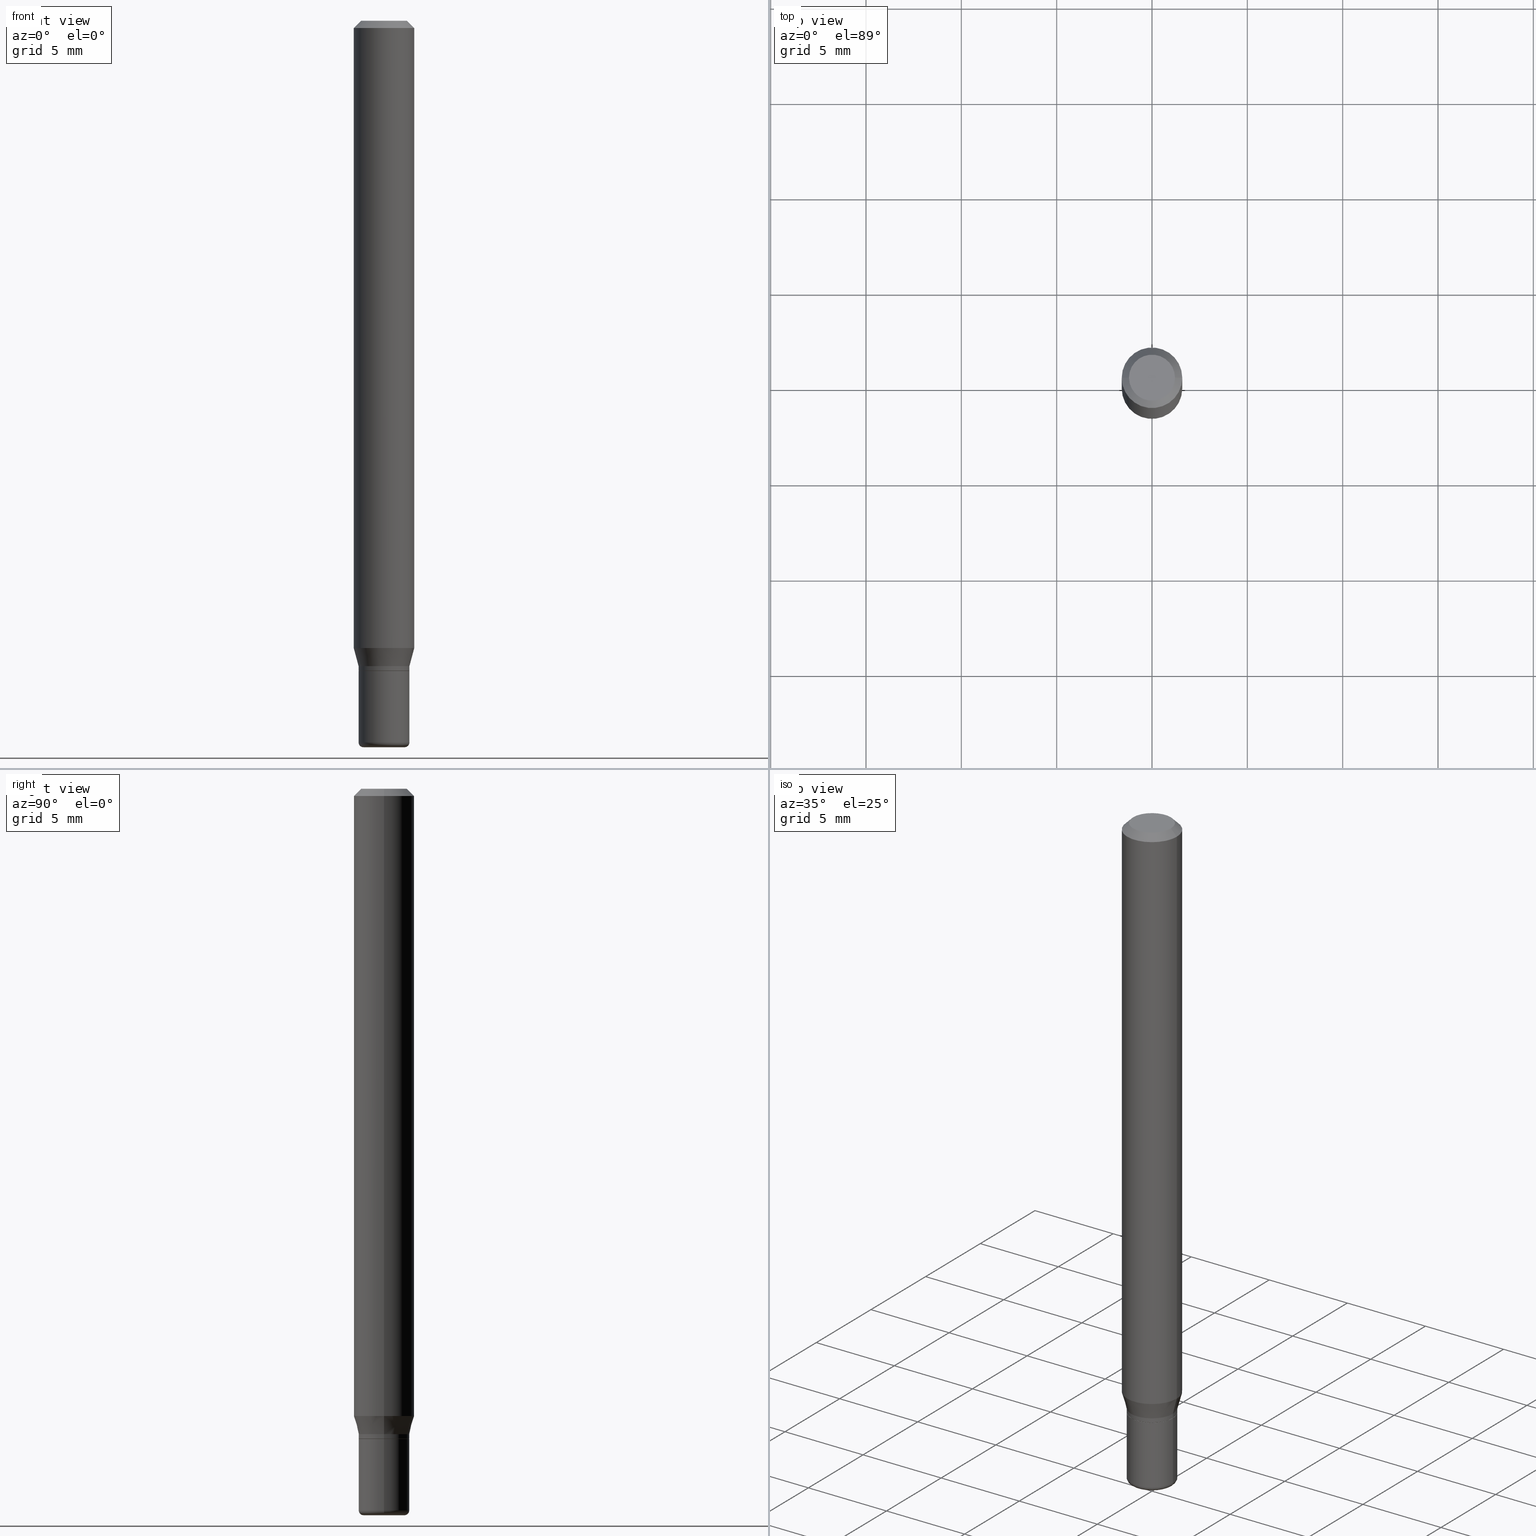
[diagram: canonical four-view strip — front | top / right | iso, engineering-drawing reading convention]
A machine part, canonical four-view strip (front | top / right | iso — engineering-drawing reading convention). The complete STEP part file that produces these views, byte-faithful:
ISO-10303-21;
HEADER;
FILE_DESCRIPTION (( 'STEP AP203' ),
    '1' );
FILE_NAME ('08603.STEP',
    '2024-02-29T19:57:09',
    ( '' ),
    ( '' ),
    'SwSTEP 2.0',
    'SolidWorks 2023',
    '' );
FILE_SCHEMA (( 'CONFIG_CONTROL_DESIGN' ));
ENDSEC;

DATA;
#1 = ORIENTED_EDGE ( 'NONE', *, *, #471, .T. ) ;
#2 = EDGE_CURVE ( 'NONE', #270, #190, #180, .T. ) ;
#3 = CONICAL_SURFACE ( 'NONE', #121, 0.05249999999999998418, 0.2617993877991485197 ) ;
#4 = LOCAL_TIME ( 14, 57, 9.000000000000000000, #480 ) ;
#5 = DIRECTION ( 'NONE',  ( -2.445468806185136597E-29, 3.491481338843145583E-15, 1.000000000000000000 ) ) ;
#6 = EDGE_CURVE ( 'NONE', #310, #7, #209, .T. ) ;
#7 = VERTEX_POINT ( 'NONE', #11 ) ;
#8 = FACE_OUTER_BOUND ( 'NONE', #487, .T. ) ;
#9 = ORIENTED_EDGE ( 'NONE', *, *, #163, .F. ) ;
#10 = CIRCLE ( 'NONE', #272, 0.06250000000000000000 ) ;
#11 = CARTESIAN_POINT ( 'NONE',  ( -0.06250000000000000000, -4.078005816656016392E-15, -1.295179491924311144 ) ) ;
#12 = CARTESIAN_POINT ( 'NONE',  ( 0.04249999999999998918, -5.533997922066385616E-15, -1.500000000000000222 ) ) ;
#13 = EDGE_CURVE ( 'NONE', #7, #190, #299, .T. ) ;
#14 = CARTESIAN_POINT ( 'NONE',  ( 3.666055405785617499E-16, 0.05249999999999530736, -1.342500000000000471 ) ) ;
#15 = CARTESIAN_POINT ( 'NONE',  ( 3.668203209277632395E-31, -5.237222008264614861E-17, -0.01499999999999970281 ) ) ;
#16 = LINE ( 'NONE', #211, #222 ) ;
#17 = FACE_OUTER_BOUND ( 'NONE', #475, .T. ) ;
#18 = DIRECTION ( 'NONE',  ( -1.000000000000000000, 6.982962677686266711E-15, 0.000000000000000000 ) ) ;
#19 = CARTESIAN_POINT ( 'NONE',  ( 0.06250000000000000000, -4.888073874380378612E-16, -0.01499999999999970281 ) ) ;
#20 = DIRECTION ( 'NONE',  ( -0.7071067811864267805, 7.493145998869918709E-15, 0.7071067811866682540 ) ) ;
#21 = CIRCLE ( 'NONE', #316, 0.06250000000000000000 ) ;
#22 = AXIS2_PLACEMENT_3D ( 'NONE', #103, #227, #505 ) ;
#23 = LINE ( 'NONE', #502, #205 ) ;
#24 = DIRECTION ( 'NONE',  ( -2.445468806185136597E-29, 3.491481338843145583E-15, 1.000000000000000000 ) ) ;
#25 = CC_DESIGN_DATE_AND_TIME_ASSIGNMENT ( #100, #383, ( #224 ) ) ;
#26 = ORIENTED_EDGE ( 'NONE', *, *, #476, .F. ) ;
#27 = DIRECTION ( 'NONE',  ( -2.445468806185136597E-29, 3.491481338843145583E-15, 1.000000000000000000 ) ) ;
#28 = CIRCLE ( 'NONE', #322, 0.05249999999999999806 ) ;
#29 = AXIS2_PLACEMENT_3D ( 'NONE', #465, #182, #335 ) ;
#30 = ORIENTED_EDGE ( 'NONE', *, *, #118, .T. ) ;
#31 = DATE_AND_TIME ( #75, #138 ) ;
#32 = COORDINATED_UNIVERSAL_TIME_OFFSET ( 5, 0, .BEHIND. ) ;
#33 = DIRECTION ( 'NONE',  ( 1.000000000000000000, -6.982962677686261977E-15, 0.000000000000000000 ) ) ;
#34 = AXIS2_PLACEMENT_3D ( 'NONE', #135, #453, #257 ) ;
#35 = VERTEX_POINT ( 'NONE', #295 ) ;
#36 = DIRECTION ( 'NONE',  ( -2.445468806185136597E-29, 3.491481338843145583E-15, 1.000000000000000000 ) ) ;
#37 = CYLINDRICAL_SURFACE ( 'NONE', #240, 0.05249999999999997030 ) ;
#38 = PRODUCT ( '08603', '08603', '', ( #355 ) ) ;
#39 = ADVANCED_FACE ( 'NONE', ( #85 ), #90, .T. ) ;
#40 = CIRCLE ( 'NONE', #150, 0.04249999999999998918 ) ;
#41 = ORIENTED_EDGE ( 'NONE', *, *, #305, .F. ) ;
#42 = EDGE_LOOP ( 'NONE', ( #409, #65, #348, #443 ) ) ;
#43 = LINE ( 'NONE', #207, #114 ) ;
#44 = DIRECTION ( 'NONE',  ( 1.000000000000000000, -6.982962677686271444E-15, 0.000000000000000000 ) ) ;
#45 = EDGE_CURVE ( 'NONE', #310, #149, #184, .T. ) ;
#46 = ORIENTED_EDGE ( 'NONE', *, *, #280, .F. ) ;
#47 = FACE_OUTER_BOUND ( 'NONE', #116, .T. ) ;
#48 = DIRECTION ( 'NONE',  ( 1.000000000000000000, -6.982962677686276966E-15, 0.000000000000000000 ) ) ;
#49 = APPROVAL_PERSON_ORGANIZATION ( #238, #241, #269 ) ;
#50 = ADVANCED_FACE ( 'NONE', ( #266 ), #57, .F. ) ;
#51 = FACE_OUTER_BOUND ( 'NONE', #195, .T. ) ;
#52 = CARTESIAN_POINT ( 'NONE',  ( 0.04750000000000000749, -4.035134999187568762E-16, 2.731847993664288856E-16 ) ) ;
#53 = DIRECTION ( 'NONE',  ( 1.000000000000000000, -6.982962677686266711E-15, 4.876176775795935793E-29 ) ) ;
#54 = CARTESIAN_POINT ( 'NONE',  ( 0.000000000000000000, 0.000000000000000000, 0.000000000000000000 ) ) ;
#55 = CARTESIAN_POINT ( 'NONE',  ( -0.06250000000000000000, -1.843144413444299442E-15, -0.01499999999999970281 ) ) ;
#56 = EDGE_LOOP ( 'NONE', ( #233, #314, #504, #125 ) ) ;
#57 = PLANE ( 'NONE',  #204 ) ;
#58 = ADVANCED_FACE ( 'NONE', ( #210 ), #101, .T. ) ;
#59 = AXIS2_PLACEMENT_3D ( 'NONE', #410, #302, #463 ) ;
#60 = EDGE_CURVE ( 'NONE', #72, #190, #10, .T. ) ;
#61 = VECTOR ( 'NONE', #87, 39.37007874015748143 ) ;
#62 = ORIENTED_EDGE ( 'NONE', *, *, #163, .T. ) ;
#63 = FACE_OUTER_BOUND ( 'NONE', #173, .T. ) ;
#64 = DIRECTION ( 'NONE',  ( 1.000000000000000000, -6.982962677686269077E-15, 0.000000000000000000 ) ) ;
#65 = ORIENTED_EDGE ( 'NONE', *, *, #6, .T. ) ;
#66 = ORIENTED_EDGE ( 'NONE', *, *, #411, .F. ) ;
#67 = APPLICATION_PROTOCOL_DEFINITION ( 'international standard', 'config_control_design', 1994, #232 ) ;
#68 = CARTESIAN_POINT ( 'NONE',  ( 0.06250000000000000000, -4.811533449433669144E-16, -0.01499999999999970281 ) ) ;
#69 = APPLICATION_PROTOCOL_DEFINITION ( 'international standard', 'config_control_design', 1994, #334 ) ;
#70 = AXIS2_PLACEMENT_3D ( 'NONE', #88, #98, #333 ) ;
#71 = APPROVAL ( #200, 'UNSPECIFIED' ) ;
#72 = VERTEX_POINT ( 'NONE', #19 ) ;
#73 = PERSON_AND_ORGANIZATION_ROLE ( 'design_owner' ) ;
#74 = DIRECTION ( 'NONE',  ( 2.438088387897960049E-29, -3.491481338843145188E-15, -1.000000000000000000 ) ) ;
#75 = CALENDAR_DATE ( 2024, 29, 2 ) ;
#76 = EDGE_CURVE ( 'NONE', #7, #251, #21, .T. ) ;
#77 =( GEOMETRIC_REPRESENTATION_CONTEXT ( 3 ) GLOBAL_UNCERTAINTY_ASSIGNED_CONTEXT ( ( #482 ) ) GLOBAL_UNIT_ASSIGNED_CONTEXT ( ( #406, #485, #444 ) ) REPRESENTATION_CONTEXT ( 'NONE', 'WORKASPACE' ) );
#78 = LOCAL_TIME ( 14, 57, 9.000000000000000000, #372 ) ;
#79 = ORIENTED_EDGE ( 'NONE', *, *, #381, .T. ) ;
#80 = EDGE_CURVE ( 'NONE', #437, #35, #359, .T. ) ;
#81 = ORIENTED_EDGE ( 'NONE', *, *, #13, .T. ) ;
#82 = CIRCLE ( 'NONE', #384, 0.05249999999999999806 ) ;
#83 = DIRECTION ( 'NONE',  ( -2.445468806185136597E-29, 3.491481338843145583E-15, 1.000000000000000000 ) ) ;
#84 = ORIENTED_EDGE ( 'NONE', *, *, #398, .T. ) ;
#85 = FACE_OUTER_BOUND ( 'NONE', #56, .T. ) ;
#86 = EDGE_LOOP ( 'NONE', ( #405, #147, #123, #287 ) ) ;
#87 = DIRECTION ( 'NONE',  ( -2.445468806185136877E-29, 3.491481338843145188E-15, 1.000000000000000000 ) ) ;
#88 = CARTESIAN_POINT ( 'NONE',  ( 3.258587184241694874E-29, -4.652398884008491604E-15, -1.332500000000000018 ) ) ;
#89 = CYLINDRICAL_SURFACE ( 'NONE', #148, 0.05249999999999997030 ) ;
#90 = CYLINDRICAL_SURFACE ( 'NONE', #365, 0.05249999999999997724 ) ;
#91 = CYLINDRICAL_SURFACE ( 'NONE', #158, 0.06250000000000000000 ) ;
#92 = CYLINDRICAL_SURFACE ( 'NONE', #174, 0.05249999999999997724 ) ;
#93 = CIRCLE ( 'NONE', #167, 0.009999999999999953371 ) ;
#94 = CARTESIAN_POINT ( 'NONE',  ( 0.05249999999999997724, -3.666055405785288149E-16, 2.559992807292865310E-30 ) ) ;
#95 = AXIS2_PLACEMENT_3D ( 'NONE', #179, #214, #260 ) ;
#96 = DIRECTION ( 'NONE',  ( 2.445468806185136597E-29, -3.491481338843145583E-15, -1.000000000000000000 ) ) ;
#97 = DIRECTION ( 'NONE',  ( -2.445468806185136877E-29, 3.491481338843145188E-15, 1.000000000000000000 ) ) ;
#98 = DIRECTION ( 'NONE',  ( -2.445468806185136597E-29, 3.491481338843145583E-15, 1.000000000000000000 ) ) ;
#99 = CARTESIAN_POINT ( 'NONE',  ( 3.283041872303546419E-29, -4.687313697396923253E-15, -1.342500000000000249 ) ) ;
#100 = DATE_AND_TIME ( #339, #78 ) ;
#101 = CYLINDRICAL_SURFACE ( 'NONE', #243, 0.06250000000000000000 ) ;
#102 = CARTESIAN_POINT ( 'NONE',  ( 3.643748521215853910E-29, -5.202307194876288105E-15, -1.490000000000000213 ) ) ;
#103 = CARTESIAN_POINT ( 'NONE',  ( 3.283041872303546419E-29, -4.687313697396923253E-15, -1.342500000000000249 ) ) ;
#104 = DIRECTION ( 'NONE',  ( 0.7071067811864267805, -2.468850131080992517E-15, 0.7071067811866682540 ) ) ;
#105 = DIRECTION ( 'NONE',  ( -2.445468806185136877E-29, 3.491481338843145188E-15, 1.000000000000000000 ) ) ;
#106 = CARTESIAN_POINT ( 'NONE',  ( 3.668203209277632395E-31, -5.237222008264614861E-17, -0.01499999999999970281 ) ) ;
#107 = VERTEX_POINT ( 'NONE', #446 ) ;
#108 = EDGE_LOOP ( 'NONE', ( #215, #242, #166, #353 ) ) ;
#109 = LINE ( 'NONE', #68, #434 ) ;
#110 = EDGE_CURVE ( 'NONE', #433, #189, #82, .T. ) ;
#111 = ORIENTED_EDGE ( 'NONE', *, *, #458, .T. ) ;
#112 = PERSON_AND_ORGANIZATION_ROLE ( 'creator' ) ;
#113 = CARTESIAN_POINT ( 'NONE',  ( -0.05249999999999997030, 3.730349362740523866E-16, -2.582440922383824260E-30 ) ) ;
#114 = VECTOR ( 'NONE', #293, 39.37007874015748143 ) ;
#115 = ORIENTED_EDGE ( 'NONE', *, *, #196, .F. ) ;
#116 = EDGE_LOOP ( 'NONE', ( #512, #478, #429, #66 ) ) ;
#117 = APPROVAL_DATE_TIME ( #230, #320 ) ;
#118 = EDGE_CURVE ( 'NONE', #251, #7, #220, .T. ) ;
#119 = DIRECTION ( 'NONE',  ( 0.000000000000000000, 0.000000000000000000, 1.000000000000000000 ) ) ;
#120 = ORIENTED_EDGE ( 'NONE', *, *, #325, .F. ) ;
#121 = AXIS2_PLACEMENT_3D ( 'NONE', #212, #331, #128 ) ;
#122 = ADVANCED_FACE ( 'NONE', ( #170 ), #37, .T. ) ;
#123 = ORIENTED_EDGE ( 'NONE', *, *, #411, .T. ) ;
#124 = CARTESIAN_POINT ( 'NONE',  ( 3.281819137900453057E-29, -4.685567956727500961E-15, -1.342000000000000082 ) ) ;
#125 = ORIENTED_EDGE ( 'NONE', *, *, #402, .F. ) ;
#126 = VERTEX_POINT ( 'NONE', #486 ) ;
#127 = AXIS2_PLACEMENT_3D ( 'NONE', #422, #375, #495 ) ;
#128 = DIRECTION ( 'NONE',  ( 1.000000000000000000, -6.982962677686269866E-15, 0.000000000000000000 ) ) ;
#129 = DIRECTION ( 'NONE',  ( -2.445468806185136597E-29, 3.491481338843145583E-15, 1.000000000000000000 ) ) ;
#130 = EDGE_LOOP ( 'NONE', ( #164, #491, #277, #367 ) ) ;
#131 = DIRECTION ( 'NONE',  ( 1.000000000000000000, -6.982962677686265922E-15, 4.876176775795935793E-29 ) ) ;
#132 = DIRECTION ( 'NONE',  ( -2.438088387897960049E-29, 3.491481338843145188E-15, 1.000000000000000000 ) ) ;
#133 = DIRECTION ( 'NONE',  ( 1.000000000000000000, -6.982962677686262766E-15, 0.000000000000000000 ) ) ;
#134 = DIRECTION ( 'NONE',  ( -2.445468806185136597E-29, 3.491481338843145583E-15, 1.000000000000000000 ) ) ;
#135 = CARTESIAN_POINT ( 'NONE',  ( -6.680649051745406845E-45, 9.538196290434862081E-31, 2.731847993664263218E-16 ) ) ;
#136 = CONICAL_SURFACE ( 'NONE', #29, 0.05249999999999998418, 0.2617993877991485197 ) ;
#137 = DIRECTION ( 'NONE',  ( 1.000000000000000000, -6.982962677686271444E-15, 0.000000000000000000 ) ) ;
#138 = LOCAL_TIME ( 14, 57, 9.000000000000000000, #32 ) ;
#139 = DIRECTION ( 'NONE',  ( 1.000000000000000000, -6.982962677686266711E-15, 0.000000000000000000 ) ) ;
#140 = EDGE_CURVE ( 'NONE', #202, #169, #426, .T. ) ;
#141 = DIRECTION ( 'NONE',  ( 1.000000000000000000, -6.982962677686262766E-15, 0.000000000000000000 ) ) ;
#142 = FACE_OUTER_BOUND ( 'NONE', #306, .T. ) ;
#143 = CARTESIAN_POINT ( 'NONE',  ( 0.05249999999999994255, -5.568912735454815688E-15, -1.490000000000000213 ) ) ;
#144 = ORIENTED_EDGE ( 'NONE', *, *, #60, .F. ) ;
#145 = MANIFOLD_SOLID_BREP ( 'Body-Move/Copy2[1]', #498 ) ;
#146 = DIRECTION ( 'NONE',  ( -2.445468806185136597E-29, 3.491481338843145583E-15, 1.000000000000000000 ) ) ;
#147 = ORIENTED_EDGE ( 'NONE', *, *, #305, .T. ) ;
#148 = AXIS2_PLACEMENT_3D ( 'NONE', #300, #258, #338 ) ;
#149 = VERTEX_POINT ( 'NONE', #176 ) ;
#150 = AXIS2_PLACEMENT_3D ( 'NONE', #450, #419, #421 ) ;
#151 = CC_DESIGN_PERSON_AND_ORGANIZATION_ASSIGNMENT ( #317, #213, ( #224 ) ) ;
#152 = ADVANCED_FACE ( 'NONE', ( #142 ), #92, .T. ) ;
#153 = DIRECTION ( 'NONE',  ( -2.445468806185136597E-29, 3.491481338843145583E-15, 1.000000000000000000 ) ) ;
#154 = ORIENTED_EDGE ( 'NONE', *, *, #361, .T. ) ;
#155 = APPROVAL_STATUS ( 'not_yet_approved' ) ;
#156 = APPROVAL_ROLE ( '' ) ;
#157 = LINE ( 'NONE', #113, #484 ) ;
#158 = AXIS2_PLACEMENT_3D ( 'NONE', #54, #226, #493 ) ;
#159 = ADVANCED_FACE ( 'NONE', ( #423 ), #89, .T. ) ;
#160 = CC_DESIGN_APPROVAL ( #71, ( #224 ) ) ;
#161 = DATE_AND_TIME ( #344, #349 ) ;
#162 = COORDINATED_UNIVERSAL_TIME_OFFSET ( 5, 0, .BEHIND. ) ;
#163 = EDGE_CURVE ( 'NONE', #126, #169, #208, .T. ) ;
#164 = ORIENTED_EDGE ( 'NONE', *, *, #471, .F. ) ;
#165 = CIRCLE ( 'NONE', #441, 0.04249999999999998918 ) ;
#166 = ORIENTED_EDGE ( 'NONE', *, *, #297, .T. ) ;
#167 = AXIS2_PLACEMENT_3D ( 'NONE', #296, #171, #254 ) ;
#168 = AXIS2_PLACEMENT_3D ( 'NONE', #15, #96, #18 ) ;
#169 = VERTEX_POINT ( 'NONE', #303 ) ;
#170 = FACE_OUTER_BOUND ( 'NONE', #108, .T. ) ;
#171 = DIRECTION ( 'NONE',  ( 7.105427357601001859E-15, 1.000000000000000000, -3.491481338843145583E-15 ) ) ;
#172 = ADVANCED_FACE ( 'NONE', ( #8 ), #496, .F. ) ;
#173 = EDGE_LOOP ( 'NONE', ( #30, #81, #144, #26 ) ) ;
#174 = AXIS2_PLACEMENT_3D ( 'NONE', #489, #247, #178 ) ;
#175 = CIRCLE ( 'NONE', #360, 0.05249999999999994255 ) ;
#176 = CARTESIAN_POINT ( 'NONE',  ( 0.05249999999999998418, -5.019004424587020764E-15, -1.332500000000000018 ) ) ;
#177 = DIRECTION ( 'NONE',  ( 1.000000000000000000, -6.982962677686265922E-15, 4.876176775795935793E-29 ) ) ;
#178 = DIRECTION ( 'NONE',  ( 1.000000000000000000, -6.982962677686265922E-15, 4.876176775795935793E-29 ) ) ;
#179 = CARTESIAN_POINT ( 'NONE',  ( 3.283041872303546419E-29, -4.687313697396923253E-15, -1.342500000000000249 ) ) ;
#180 = LINE ( 'NONE', #252, #432 ) ;
#181 = CARTESIAN_POINT ( 'NONE',  ( 3.283041872303546419E-29, -4.687313697396923253E-15, -1.342500000000000249 ) ) ;
#182 = DIRECTION ( 'NONE',  ( -2.445468806185136597E-29, 3.491481338843145583E-15, 1.000000000000000000 ) ) ;
#183 = CARTESIAN_POINT ( 'NONE',  ( 3.167321045911617148E-29, -4.522095026506079008E-15, -1.295179491924311144 ) ) ;
#184 = CIRCLE ( 'NONE', #474, 0.05249999999999998418 ) ;
#185 = CARTESIAN_POINT ( 'NONE',  ( 0.06250000000000000000, -4.958530193861471467E-15, -1.295179491924311144 ) ) ;
#186 = VECTOR ( 'NONE', #105, 39.37007874015748143 ) ;
#187 = DIRECTION ( 'NONE',  ( 2.438088387897960049E-29, -3.491481338843145188E-15, -1.000000000000000000 ) ) ;
#188 = CC_DESIGN_PERSON_AND_ORGANIZATION_ASSIGNMENT ( #472, #112, ( #447 ) ) ;
#189 = VERTEX_POINT ( 'NONE', #460 ) ;
#190 = VERTEX_POINT ( 'NONE', #55 ) ;
#191 = CLOSED_SHELL ( 'NONE', ( #39, #414, #313, #461, #326, #253, #58, #237, #391, #50, #382, #152 ) ) ;
#192 = ORIENTED_EDGE ( 'NONE', *, *, #246, .F. ) ;
#193 = DIRECTION ( 'NONE',  ( 1.000000000000000000, 0.000000000000000000, 0.000000000000000000 ) ) ;
#194 = DIRECTION ( 'NONE',  ( 0.2588190451025199623, 1.565188264969633209E-15, 0.9659258262890685343 ) ) ;
#195 = EDGE_LOOP ( 'NONE', ( #324, #330, #470, #449 ) ) ;
#196 = EDGE_CURVE ( 'NONE', #189, #433, #28, .T. ) ;
#197 = DATE_TIME_ROLE ( 'creation_date' ) ;
#198 = DIRECTION ( 'NONE',  ( 1.000000000000000000, -6.982962677686266711E-15, 4.852736867747365086E-29 ) ) ;
#199 = ADVANCED_BREP_SHAPE_REPRESENTATION ( '08603', ( #145, #488, #436 ), #77 ) ;
#200 = APPROVAL_STATUS ( 'not_yet_approved' ) ;
#201 = CONICAL_SURFACE ( 'NONE', #168, 0.06250000000000000000, 0.7853981633974488341 ) ;
#202 = VERTEX_POINT ( 'NONE', #451 ) ;
#203 = CARTESIAN_POINT ( 'NONE',  ( 0.000000000000000000, 0.000000000000000000, 0.000000000000000000 ) ) ;
#204 = AXIS2_PLACEMENT_3D ( 'NONE', #452, #256, #131 ) ;
#205 = VECTOR ( 'NONE', #194, 39.37007874015748143 ) ;
#206 = EDGE_CURVE ( 'NONE', #107, #35, #93, .T. ) ;
#207 = CARTESIAN_POINT ( 'NONE',  ( 0.05249999999999997030, -3.666055405785287656E-16, 2.559992807292864610E-30 ) ) ;
#208 = LINE ( 'NONE', #494, #309 ) ;
#209 = LINE ( 'NONE', #370, #403 ) ;
#210 = FACE_OUTER_BOUND ( 'NONE', #265, .T. ) ;
#211 = CARTESIAN_POINT ( 'NONE',  ( 0.06250000000000000000, -4.364351673553916694E-16, 3.047610484872459871E-30 ) ) ;
#212 = CARTESIAN_POINT ( 'NONE',  ( 3.258587184241694874E-29, -4.652398884008491604E-15, -1.332500000000000018 ) ) ;
#213 = PERSON_AND_ORGANIZATION_ROLE ( 'classification_officer' ) ;
#214 = DIRECTION ( 'NONE',  ( -2.445468806185136597E-29, 3.491481338843145583E-15, 1.000000000000000000 ) ) ;
#215 = ORIENTED_EDGE ( 'NONE', *, *, #398, .F. ) ;
#216 = DIRECTION ( 'NONE',  ( -1.000000000000000000, 6.982962677686265922E-15, -4.876176775795935793E-29 ) ) ;
#217 = CARTESIAN_POINT ( 'NONE',  ( 3.668203209277704895E-29, -5.237222008264718177E-15, -1.500000000000000222 ) ) ;
#218 = ORIENTED_EDGE ( 'NONE', *, *, #13, .F. ) ;
#219 = DIRECTION ( 'NONE',  ( -2.445468806185136597E-29, 3.491481338843145583E-15, 1.000000000000000000 ) ) ;
#220 = CIRCLE ( 'NONE', #286, 0.06250000000000000000 ) ;
#221 = DIRECTION ( 'NONE',  ( -2.445468806185136597E-29, 3.491481338843145583E-15, 1.000000000000000000 ) ) ;
#222 = VECTOR ( 'NONE', #377, 39.37007874015748143 ) ;
#223 = CARTESIAN_POINT ( 'NONE',  ( 0.04249999999999998918, -5.499083108677954756E-15, -1.490000000000000213 ) ) ;
#224 = SECURITY_CLASSIFICATION ( '', '', #501 ) ;
#225 = FACE_OUTER_BOUND ( 'NONE', #42, .T. ) ;
#226 = DIRECTION ( 'NONE',  ( -2.445468806185136597E-29, 3.491481338843145583E-15, 1.000000000000000000 ) ) ;
#227 = DIRECTION ( 'NONE',  ( -2.445468806185136597E-29, 3.491481338843145583E-15, 1.000000000000000000 ) ) ;
#228 = CC_DESIGN_PERSON_AND_ORGANIZATION_ASSIGNMENT ( #357, #73, ( #38 ) ) ;
#229 = DIMENSIONAL_EXPONENTS ( 1.000000000000000000, 0.000000000000000000, 0.000000000000000000, 0.000000000000000000, 0.000000000000000000, 0.000000000000000000, 0.000000000000000000 ) ;
#230 = DATE_AND_TIME ( #397, #4 ) ;
#231 = DIRECTION ( 'NONE',  ( 0.7071067811865479058, -7.319954787623257623E-15, -0.7071067811865471286 ) ) ;
#232 = APPLICATION_CONTEXT ( 'configuration controlled 3d designs of mechanical parts and assemblies' ) ;
#233 = ORIENTED_EDGE ( 'NONE', *, *, #140, .T. ) ;
#234 = AXIS2_PLACEMENT_3D ( 'NONE', #106, #340, #139 ) ;
#235 = CIRCLE ( 'NONE', #234, 0.06250000000000000000 ) ;
#236 = PLANE ( 'NONE',  #500 ) ;
#237 = ADVANCED_FACE ( 'NONE', ( #51 ), #466, .T. ) ;
#238 = PERSON_AND_ORGANIZATION ( #503, #281 ) ;
#239 = EDGE_LOOP ( 'NONE', ( #9, #284, #111, #327 ) ) ;
#240 = AXIS2_PLACEMENT_3D ( 'NONE', #203, #5, #329 ) ;
#241 = APPROVAL ( #155, 'UNSPECIFIED' ) ;
#242 = ORIENTED_EDGE ( 'NONE', *, *, #516, .T. ) ;
#243 = AXIS2_PLACEMENT_3D ( 'NONE', #336, #497, #53 ) ;
#244 = ORIENTED_EDGE ( 'NONE', *, *, #458, .F. ) ;
#245 = CONICAL_SURFACE ( 'NONE', #22, 0.05199999999999996986, 0.7853981633972775267 ) ;
#246 = EDGE_CURVE ( 'NONE', #469, #107, #165, .T. ) ;
#247 = DIRECTION ( 'NONE',  ( -2.445468806185136597E-29, 3.491481338843145583E-15, 1.000000000000000000 ) ) ;
#248 = ORIENTED_EDGE ( 'NONE', *, *, #45, .T. ) ;
#249 = DIRECTION ( 'NONE',  ( 1.000000000000000000, -6.982962677686269866E-15, 0.000000000000000000 ) ) ;
#250 = DIRECTION ( 'NONE',  ( 2.445468806185136597E-29, -3.491481338843145583E-15, -1.000000000000000000 ) ) ;
#251 = VERTEX_POINT ( 'NONE', #185 ) ;
#252 = CARTESIAN_POINT ( 'NONE',  ( -0.06250000000000000000, 3.840629472727455270E-16, -0.01499999999999970281 ) ) ;
#253 = ADVANCED_FACE ( 'NONE', ( #17 ), #3, .T. ) ;
#254 = DIRECTION ( 'NONE',  ( -1.000000000000000000, 7.105427357600958471E-15, 0.000000000000000000 ) ) ;
#255 = AXIS2_PLACEMENT_3D ( 'NONE', #124, #83, #44 ) ;
#256 = DIRECTION ( 'NONE',  ( -2.438088387897960049E-29, 3.491481338843145188E-15, 1.000000000000000000 ) ) ;
#257 = DIRECTION ( 'NONE',  ( 1.000000000000000000, -6.982962677686266711E-15, 4.852736867747365086E-29 ) ) ;
#258 = DIRECTION ( 'NONE',  ( -2.445468806185136597E-29, 3.491481338843145583E-15, 1.000000000000000000 ) ) ;
#259 = DIRECTION ( 'NONE',  ( -6.982962677686266711E-15, -1.000000000000000000, 3.491481338843145583E-15 ) ) ;
#260 = DIRECTION ( 'NONE',  ( 1.000000000000000000, -6.982962677686261977E-15, 0.000000000000000000 ) ) ;
#261 = CARTESIAN_POINT ( 'NONE',  ( 0.000000000000000000, 0.000000000000000000, 0.000000000000000000 ) ) ;
#262 = DIRECTION ( 'NONE',  ( 1.000000000000000000, -6.982962677686257244E-15, 4.883557194083109538E-29 ) ) ;
#263 = DIRECTION ( 'NONE',  ( 1.000000000000000000, -6.982962677686268288E-15, 0.000000000000000000 ) ) ;
#264 = FACE_OUTER_BOUND ( 'NONE', #130, .T. ) ;
#265 = EDGE_LOOP ( 'NONE', ( #218, #308, #440, #425 ) ) ;
#266 = FACE_OUTER_BOUND ( 'NONE', #400, .T. ) ;
#267 = PLANE ( 'NONE',  #427 ) ;
#268 = EDGE_LOOP ( 'NONE', ( #481, #448 ) ) ;
#269 = APPROVAL_ROLE ( '' ) ;
#270 = VERTEX_POINT ( 'NONE', #376 ) ;
#271 = DIRECTION ( 'NONE',  ( 1.000000000000000000, -6.982962677686261977E-15, 0.000000000000000000 ) ) ;
#272 = AXIS2_PLACEMENT_3D ( 'NONE', #379, #219, #290 ) ;
#273 = CIRCLE ( 'NONE', #392, 0.009999999999999953371 ) ;
#274 = DATE_AND_TIME ( #356, #282 ) ;
#275 = DIRECTION ( 'NONE',  ( -2.445468806185136877E-29, 3.491481338843145188E-15, 1.000000000000000000 ) ) ;
#276 = EDGE_LOOP ( 'NONE', ( #369, #84, #115, #442 ) ) ;
#277 = ORIENTED_EDGE ( 'NONE', *, *, #60, .T. ) ;
#278 = PERSON_AND_ORGANIZATION ( #503, #281 ) ;
#279 = SHAPE_DEFINITION_REPRESENTATION ( #364, #199 ) ;
#280 = EDGE_CURVE ( 'NONE', #169, #310, #378, .T. ) ;
#281 = ORGANIZATION ( 'UNSPECIFIED', 'UNSPECIFIED', '' ) ;
#282 = LOCAL_TIME ( 14, 57, 9.000000000000000000, #162 ) ;
#283 = ORIENTED_EDGE ( 'NONE', *, *, #45, .F. ) ;
#284 = ORIENTED_EDGE ( 'NONE', *, *, #325, .T. ) ;
#285 = LENGTH_MEASURE_WITH_UNIT ( LENGTH_MEASURE( 0.02539999999999999897 ), #368 );
#286 = AXIS2_PLACEMENT_3D ( 'NONE', #301, #129, #133 ) ;
#287 = ORIENTED_EDGE ( 'NONE', *, *, #516, .F. ) ;
#288 = CIRCLE ( 'NONE', #517, 0.05199999999999996986 ) ;
#289 = ADVANCED_FACE ( 'NONE', ( #412 ), #508, .T. ) ;
#290 = DIRECTION ( 'NONE',  ( 1.000000000000000000, -6.982962677686266711E-15, 0.000000000000000000 ) ) ;
#291 = CARTESIAN_POINT ( 'NONE',  ( -0.05249999999999997724, 3.730349362740524359E-16, -2.582440922383824611E-30 ) ) ;
#292 = DIRECTION ( 'NONE',  ( -0.7071067811865479058, 2.468850131082261005E-15, -0.7071067811865471286 ) ) ;
#293 = DIRECTION ( 'NONE',  ( -2.445468806185136877E-29, 3.491481338843145188E-15, 1.000000000000000000 ) ) ;
#294 = DIRECTION ( 'NONE',  ( 1.000000000000000000, -6.982962677686265922E-15, 4.876176775795935793E-29 ) ) ;
#295 = CARTESIAN_POINT ( 'NONE',  ( -0.05249999999999994255, -4.571775509862553934E-15, -1.490000000000000213 ) ) ;
#296 = CARTESIAN_POINT ( 'NONE',  ( -0.04249999999999998918, -4.900326532178244864E-15, -1.490000000000000213 ) ) ;
#297 = EDGE_CURVE ( 'NONE', #437, #189, #43, .T. ) ;
#298 = AXIS2_PLACEMENT_3D ( 'NONE', #304, #146, #137 ) ;
#299 = LINE ( 'NONE', #386, #347 ) ;
#300 = CARTESIAN_POINT ( 'NONE',  ( 0.000000000000000000, 0.000000000000000000, 0.000000000000000000 ) ) ;
#301 = CARTESIAN_POINT ( 'NONE',  ( 3.167321045911617148E-29, -4.522095026506079008E-15, -1.295179491924311144 ) ) ;
#302 = DIRECTION ( 'NONE',  ( -2.445468806185136597E-29, 3.491481338843145583E-15, 1.000000000000000000 ) ) ;
#303 = CARTESIAN_POINT ( 'NONE',  ( -0.05249999999999997030, -4.312533020453449215E-15, -1.342000000000000082 ) ) ;
#304 = CARTESIAN_POINT ( 'NONE',  ( 3.281819137900453057E-29, -4.685567956727500961E-15, -1.342000000000000082 ) ) ;
#305 = EDGE_CURVE ( 'NONE', #107, #469, #40, .T. ) ;
#306 = EDGE_LOOP ( 'NONE', ( #46, #415, #395, #283 ) ) ;
#307 = LINE ( 'NONE', #416, #399 ) ;
#308 = ORIENTED_EDGE ( 'NONE', *, *, #76, .T. ) ;
#309 = VECTOR ( 'NONE', #20, 39.37007874015748143 ) ;
#310 = VERTEX_POINT ( 'NONE', #345 ) ;
#311 = ORIENTED_EDGE ( 'NONE', *, *, #499, .F. ) ;
#312 = CARTESIAN_POINT ( 'NONE',  ( 0.05199999999999996986, -5.050427756636608617E-15, -1.342500000000000249 ) ) ;
#313 = ADVANCED_FACE ( 'NONE', ( #264 ), #201, .T. ) ;
#314 = ORIENTED_EDGE ( 'NONE', *, *, #280, .T. ) ;
#315 = APPROVAL_DATE_TIME ( #161, #241 ) ;
#316 = AXIS2_PLACEMENT_3D ( 'NONE', #183, #24, #141 ) ;
#317 = PERSON_AND_ORGANIZATION ( #503, #281 ) ;
#318 = APPROVAL_STATUS ( 'not_yet_approved' ) ;
#319 = PERSON_AND_ORGANIZATION_ROLE ( 'creator' ) ;
#320 = APPROVAL ( #318, 'UNSPECIFIED' ) ;
#321 = CARTESIAN_POINT ( 'NONE',  ( 3.643748521215853910E-29, -5.202307194876288105E-15, -1.490000000000000213 ) ) ;
#322 = AXIS2_PLACEMENT_3D ( 'NONE', #99, #408, #263 ) ;
#323 = AXIS2_PLACEMENT_3D ( 'NONE', #390, #27, #198 ) ;
#324 = ORIENTED_EDGE ( 'NONE', *, *, #363, .F. ) ;
#325 = EDGE_CURVE ( 'NONE', #126, #513, #404, .T. ) ;
#326 = ADVANCED_FACE ( 'NONE', ( #225 ), #136, .T. ) ;
#327 = ORIENTED_EDGE ( 'NONE', *, *, #438, .F. ) ;
#328 = DIRECTION ( 'NONE',  ( 1.000000000000000000, -6.982962677686268288E-15, 0.000000000000000000 ) ) ;
#329 = DIRECTION ( 'NONE',  ( 1.000000000000000000, -6.982962677686265922E-15, 4.876176775795935232E-29 ) ) ;
#330 = ORIENTED_EDGE ( 'NONE', *, *, #381, .F. ) ;
#331 = DIRECTION ( 'NONE',  ( -2.445468806185136597E-29, 3.491481338843145583E-15, 1.000000000000000000 ) ) ;
#332 = TOROIDAL_SURFACE ( 'NONE', #127, 0.04249999999999998918, 0.009999999999999953371 ) ;
#333 = DIRECTION ( 'NONE',  ( 1.000000000000000000, -6.982962677686269866E-15, 0.000000000000000000 ) ) ;
#334 = APPLICATION_CONTEXT ( 'configuration controlled 3d designs of mechanical parts and assemblies' ) ;
#335 = DIRECTION ( 'NONE',  ( 1.000000000000000000, -6.982962677686269866E-15, 0.000000000000000000 ) ) ;
#336 = CARTESIAN_POINT ( 'NONE',  ( 0.000000000000000000, 0.000000000000000000, 0.000000000000000000 ) ) ;
#337 = DIRECTION ( 'NONE',  ( -2.445468806185136597E-29, 3.491481338843145583E-15, 1.000000000000000000 ) ) ;
#338 = DIRECTION ( 'NONE',  ( 1.000000000000000000, -6.982962677686265922E-15, 4.876176775795935232E-29 ) ) ;
#339 = CALENDAR_DATE ( 2024, 29, 2 ) ;
#340 = DIRECTION ( 'NONE',  ( -2.445468806185136597E-29, 3.491481338843145583E-15, 1.000000000000000000 ) ) ;
#341 = CIRCLE ( 'NONE', #323, 0.04750000000000000749 ) ;
#342 = ORIENTED_EDGE ( 'NONE', *, *, #6, .F. ) ;
#343 = CARTESIAN_POINT ( 'NONE',  ( -0.05249999999999999806, -4.571775509862553934E-15, -1.342500000000000249 ) ) ;
#344 = CALENDAR_DATE ( 2024, 29, 2 ) ;
#345 = CARTESIAN_POINT ( 'NONE',  ( -0.05249999999999998418, -4.178684882195227337E-15, -1.332500000000000018 ) ) ;
#346 = ORIENTED_EDGE ( 'NONE', *, *, #140, .F. ) ;
#347 = VECTOR ( 'NONE', #97, 39.37007874015748143 ) ;
#348 = ORIENTED_EDGE ( 'NONE', *, *, #118, .F. ) ;
#349 = LOCAL_TIME ( 14, 57, 9.000000000000000000, #394 ) ;
#350 = APPROVAL_PERSON_ORGANIZATION ( #464, #71, #156 ) ;
#351 = FACE_OUTER_BOUND ( 'NONE', #239, .T. ) ;
#352 = ORIENTED_EDGE ( 'NONE', *, *, #76, .F. ) ;
#353 = ORIENTED_EDGE ( 'NONE', *, *, #110, .F. ) ;
#354 = EDGE_CURVE ( 'NONE', #190, #72, #235, .T. ) ;
#355 = MECHANICAL_CONTEXT ( 'NONE', #232, 'mechanical' ) ;
#356 = CALENDAR_DATE ( 2024, 29, 2 ) ;
#357 = PERSON_AND_ORGANIZATION ( #503, #281 ) ;
#358 = APPROVAL_DATE_TIME ( #274, #71 ) ;
#359 = CIRCLE ( 'NONE', #59, 0.05249999999999994255 ) ;
#360 = AXIS2_PLACEMENT_3D ( 'NONE', #321, #36, #362 ) ;
#361 = EDGE_CURVE ( 'NONE', #149, #251, #23, .T. ) ;
#362 = DIRECTION ( 'NONE',  ( 1.000000000000000000, -6.982962677686257244E-15, 0.000000000000000000 ) ) ;
#363 = EDGE_CURVE ( 'NONE', #430, #72, #109, .T. ) ;
#364 = PRODUCT_DEFINITION_SHAPE ( 'NONE', 'NONE',  #447 ) ;
#365 = AXIS2_PLACEMENT_3D ( 'NONE', #261, #134, #177 ) ;
#366 = CIRCLE ( 'NONE', #34, 0.04750000000000000749 ) ;
#367 = ORIENTED_EDGE ( 'NONE', *, *, #2, .F. ) ;
#368 =( LENGTH_UNIT ( ) NAMED_UNIT ( * ) SI_UNIT ( $, .METRE. ) );
#369 = ORIENTED_EDGE ( 'NONE', *, *, #80, .T. ) ;
#370 = CARTESIAN_POINT ( 'NONE',  ( -0.05249999999999998418, -4.279363947734439070E-15, -1.332500000000000018 ) ) ;
#371 = CARTESIAN_POINT ( 'NONE',  ( 3.582686580359766038E-29, -5.359686688179453325E-15, -1.500000000000000222 ) ) ;
#372 = COORDINATED_UNIVERSAL_TIME_OFFSET ( 5, 0, .BEHIND. ) ;
#373 = PRODUCT_DEFINITION_FORMATION_WITH_SPECIFIED_SOURCE ( 'ANY', '', #38, .NOT_KNOWN. ) ;
#374 = DIRECTION ( 'NONE',  ( -0.2588190451025199623, 5.211531920934541575E-15, 0.9659258262890685343 ) ) ;
#375 = DIRECTION ( 'NONE',  ( -2.445468806185136597E-29, 3.491481338843145583E-15, 1.000000000000000000 ) ) ;
#376 = CARTESIAN_POINT ( 'NONE',  ( -0.04750000000000000749, 3.578768372314221353E-16, 2.731847993664239060E-16 ) ) ;
#377 = DIRECTION ( 'NONE',  ( -2.445468806185136877E-29, 3.491481338843145188E-15, 1.000000000000000000 ) ) ;
#378 = LINE ( 'NONE', #291, #61 ) ;
#379 = CARTESIAN_POINT ( 'NONE',  ( 3.668203209277632395E-31, -5.237222008264614861E-17, -0.01499999999999970281 ) ) ;
#380 = DIRECTION ( 'NONE',  ( -2.445468806185136597E-29, 3.491481338843145583E-15, 1.000000000000000000 ) ) ;
#381 = EDGE_CURVE ( 'NONE', #270, #430, #341, .T. ) ;
#382 = ADVANCED_FACE ( 'NONE', ( #351 ), #457, .T. ) ;
#383 = DATE_TIME_ROLE ( 'classification_date' ) ;
#384 = AXIS2_PLACEMENT_3D ( 'NONE', #407, #506, #328 ) ;
#385 = CIRCLE ( 'NONE', #298, 0.05249999999999997030 ) ;
#386 = CARTESIAN_POINT ( 'NONE',  ( -0.06250000000000000000, 4.440892098500626162E-16, -3.074334431409316114E-30 ) ) ;
#387 = CARTESIAN_POINT ( 'NONE',  ( 0.000000000000000000, 0.000000000000000000, 0.000000000000000000 ) ) ;
#388 = EDGE_LOOP ( 'NONE', ( #79, #1 ) ) ;
#389 = APPROVAL_ROLE ( '' ) ;
#390 = CARTESIAN_POINT ( 'NONE',  ( -6.680649051745406845E-45, 9.538196290434862081E-31, 2.731847993664263218E-16 ) ) ;
#391 = ADVANCED_FACE ( 'NONE', ( #431 ), #236, .F. ) ;
#392 = AXIS2_PLACEMENT_3D ( 'NONE', #223, #259, #64 ) ;
#393 = CARTESIAN_POINT ( 'NONE',  ( 3.316907271900976589E-16, 0.04750000000000000749, -2.925296391183627249E-17 ) ) ;
#394 = COORDINATED_UNIVERSAL_TIME_OFFSET ( 5, 0, .BEHIND. ) ;
#395 = ORIENTED_EDGE ( 'NONE', *, *, #402, .T. ) ;
#396 = CC_DESIGN_DATE_AND_TIME_ASSIGNMENT ( #31, #197, ( #447 ) ) ;
#397 = CALENDAR_DATE ( 2024, 29, 2 ) ;
#398 = EDGE_CURVE ( 'NONE', #35, #433, #157, .T. ) ;
#399 = VECTOR ( 'NONE', #104, 39.37007874015748143 ) ;
#400 = EDGE_LOOP ( 'NONE', ( #311, #120 ) ) ;
#401 = DESIGN_CONTEXT ( 'detailed design', #334, 'design' ) ;
#402 = EDGE_CURVE ( 'NONE', #202, #149, #455, .T. ) ;
#403 = VECTOR ( 'NONE', #374, 39.37007874015748143 ) ;
#404 = CIRCLE ( 'NONE', #95, 0.05199999999999996986 ) ;
#405 = ORIENTED_EDGE ( 'NONE', *, *, #206, .F. ) ;
#406 =( CONVERSION_BASED_UNIT ( 'INCH', #285 ) LENGTH_UNIT ( ) NAMED_UNIT ( #229 ) );
#407 = CARTESIAN_POINT ( 'NONE',  ( 3.283041872303546419E-29, -4.687313697396923253E-15, -1.342500000000000249 ) ) ;
#408 = DIRECTION ( 'NONE',  ( -2.445468806185136597E-29, 3.491481338843145583E-15, 1.000000000000000000 ) ) ;
#409 = ORIENTED_EDGE ( 'NONE', *, *, #445, .T. ) ;
#410 = CARTESIAN_POINT ( 'NONE',  ( 3.643748521215853910E-29, -5.202307194876288105E-15, -1.490000000000000213 ) ) ;
#411 = EDGE_CURVE ( 'NONE', #469, #437, #273, .T. ) ;
#412 = FACE_OUTER_BOUND ( 'NONE', #86, .T. ) ;
#413 = CC_DESIGN_PERSON_AND_ORGANIZATION_ASSIGNMENT ( #428, #507, ( #373 ) ) ;
#414 = ADVANCED_FACE ( 'NONE', ( #420 ), #245, .T. ) ;
#415 = ORIENTED_EDGE ( 'NONE', *, *, #438, .T. ) ;
#416 = CARTESIAN_POINT ( 'NONE',  ( 0.05199999999999996986, -5.050427756636608617E-15, -1.342500000000000249 ) ) ;
#417 = DIRECTION ( 'NONE',  ( -1.000000000000000000, 6.982962677686266711E-15, 0.000000000000000000 ) ) ;
#418 = AXIS2_PLACEMENT_3D ( 'NONE', #454, #250, #417 ) ;
#419 = DIRECTION ( 'NONE',  ( -2.445468806185136597E-29, 3.491481338843145583E-15, 1.000000000000000000 ) ) ;
#420 = FACE_OUTER_BOUND ( 'NONE', #468, .T. ) ;
#421 = DIRECTION ( 'NONE',  ( 1.000000000000000000, -6.982962677686276966E-15, 0.000000000000000000 ) ) ;
#422 = CARTESIAN_POINT ( 'NONE',  ( 3.643748521215853910E-29, -5.202307194876288105E-15, -1.490000000000000213 ) ) ;
#423 = FACE_OUTER_BOUND ( 'NONE', #276, .T. ) ;
#424 = FACE_OUTER_BOUND ( 'NONE', #268, .T. ) ;
#425 = ORIENTED_EDGE ( 'NONE', *, *, #354, .F. ) ;
#426 = CIRCLE ( 'NONE', #255, 0.05249999999999997030 ) ;
#427 = AXIS2_PLACEMENT_3D ( 'NONE', #14, #187, #216 ) ;
#428 = PERSON_AND_ORGANIZATION ( #503, #281 ) ;
#429 = ORIENTED_EDGE ( 'NONE', *, *, #80, .F. ) ;
#430 = VERTEX_POINT ( 'NONE', #52 ) ;
#431 = FACE_OUTER_BOUND ( 'NONE', #388, .T. ) ;
#432 = VECTOR ( 'NONE', #292, 39.37007874015748143 ) ;
#433 = VERTEX_POINT ( 'NONE', #343 ) ;
#434 = VECTOR ( 'NONE', #231, 39.37007874015748143 ) ;
#435 = CC_DESIGN_PERSON_AND_ORGANIZATION_ASSIGNMENT ( #278, #319, ( #373 ) ) ;
#436 = AXIS2_PLACEMENT_3D ( 'NONE', #387, #119, #193 ) ;
#437 = VERTEX_POINT ( 'NONE', #143 ) ;
#438 = EDGE_CURVE ( 'NONE', #169, #202, #385, .T. ) ;
#439 = ADVANCED_FACE ( 'NONE', ( #424 ), #267, .F. ) ;
#440 = ORIENTED_EDGE ( 'NONE', *, *, #476, .T. ) ;
#441 = AXIS2_PLACEMENT_3D ( 'NONE', #217, #380, #48 ) ;
#442 = ORIENTED_EDGE ( 'NONE', *, *, #297, .F. ) ;
#443 = ORIENTED_EDGE ( 'NONE', *, *, #361, .F. ) ;
#444 =( NAMED_UNIT ( * ) SI_UNIT ( $, .STERADIAN. ) SOLID_ANGLE_UNIT ( ) );
#445 = EDGE_CURVE ( 'NONE', #149, #310, #490, .T. ) ;
#446 = CARTESIAN_POINT ( 'NONE',  ( -0.04249999999999998918, -4.882256802084455647E-15, -1.500000000000000222 ) ) ;
#447 = PRODUCT_DEFINITION ( 'UNKNOWN', '', #373, #401 ) ;
#448 = ORIENTED_EDGE ( 'NONE', *, *, #110, .T. ) ;
#449 = ORIENTED_EDGE ( 'NONE', *, *, #354, .T. ) ;
#450 = CARTESIAN_POINT ( 'NONE',  ( 3.668203209277704895E-29, -5.237222008264718177E-15, -1.500000000000000222 ) ) ;
#451 = CARTESIAN_POINT ( 'NONE',  ( 0.05249999999999997030, -5.052173497306030121E-15, -1.342000000000000082 ) ) ;
#452 = CARTESIAN_POINT ( 'NONE',  ( 3.283041872303546419E-29, -4.687313697396923253E-15, -1.342500000000000249 ) ) ;
#453 = DIRECTION ( 'NONE',  ( -2.445468806185136597E-29, 3.491481338843145583E-15, 1.000000000000000000 ) ) ;
#454 = CARTESIAN_POINT ( 'NONE',  ( 3.668203209277632395E-31, -5.237222008264614861E-17, -0.01499999999999970281 ) ) ;
#455 = LINE ( 'NONE', #94, #186 ) ;
#456 = AXIS2_PLACEMENT_3D ( 'NONE', #511, #153, #271 ) ;
#457 = CONICAL_SURFACE ( 'NONE', #456, 0.05199999999999996986, 0.7853981633972775267 ) ;
#458 = EDGE_CURVE ( 'NONE', #513, #202, #307, .T. ) ;
#459 = DIRECTION ( 'NONE',  ( -2.445468806185136597E-29, 3.491481338843145583E-15, 1.000000000000000000 ) ) ;
#460 = CARTESIAN_POINT ( 'NONE',  ( 0.05249999999999999806, -5.053919237975452413E-15, -1.342500000000000249 ) ) ;
#461 = ADVANCED_FACE ( 'NONE', ( #63 ), #91, .T. ) ;
#462 = ADVANCED_FACE ( 'NONE', ( #47 ), #332, .T. ) ;
#463 = DIRECTION ( 'NONE',  ( 1.000000000000000000, -6.982962677686257244E-15, 0.000000000000000000 ) ) ;
#464 = PERSON_AND_ORGANIZATION ( #503, #281 ) ;
#465 = CARTESIAN_POINT ( 'NONE',  ( 3.258587184241694874E-29, -4.652398884008491604E-15, -1.332500000000000018 ) ) ;
#466 = CONICAL_SURFACE ( 'NONE', #418, 0.06250000000000000000, 0.7853981633974488341 ) ;
#467 = CC_DESIGN_APPROVAL ( #241, ( #447 ) ) ;
#468 = EDGE_LOOP ( 'NONE', ( #510, #62, #346, #244 ) ) ;
#469 = VERTEX_POINT ( 'NONE', #12 ) ;
#470 = ORIENTED_EDGE ( 'NONE', *, *, #2, .T. ) ;
#471 = EDGE_CURVE ( 'NONE', #430, #270, #366, .T. ) ;
#472 = PERSON_AND_ORGANIZATION ( #503, #281 ) ;
#473 = PRODUCT_RELATED_PRODUCT_CATEGORY ( 'detail', '', ( #38 ) ) ;
#474 = AXIS2_PLACEMENT_3D ( 'NONE', #492, #459, #249 ) ;
#475 = EDGE_LOOP ( 'NONE', ( #342, #248, #154, #352 ) ) ;
#476 = EDGE_CURVE ( 'NONE', #251, #72, #16, .T. ) ;
#477 = AXIS2_PLACEMENT_3D ( 'NONE', #102, #221, #262 ) ;
#478 = ORIENTED_EDGE ( 'NONE', *, *, #206, .T. ) ;
#479 = CC_DESIGN_SECURITY_CLASSIFICATION ( #224, ( #373 ) ) ;
#480 = COORDINATED_UNIVERSAL_TIME_OFFSET ( 5, 0, .BEHIND. ) ;
#481 = ORIENTED_EDGE ( 'NONE', *, *, #196, .T. ) ;
#482 = UNCERTAINTY_MEASURE_WITH_UNIT (LENGTH_MEASURE( 1.000000000000000082E-05 ), #406, 'distance_accuracy_value', 'NONE');
#483 = AXIS2_PLACEMENT_3D ( 'NONE', #371, #132, #294 ) ;
#484 = VECTOR ( 'NONE', #275, 39.37007874015748143 ) ;
#485 =( NAMED_UNIT ( * ) PLANE_ANGLE_UNIT ( ) SI_UNIT ( $, .RADIAN. ) );
#486 = CARTESIAN_POINT ( 'NONE',  ( -0.05199999999999996986, -4.315182247627560416E-15, -1.342500000000000249 ) ) ;
#487 = EDGE_LOOP ( 'NONE', ( #192, #41 ) ) ;
#488 = MANIFOLD_SOLID_BREP ( 'Body-Move/Copy2[2]', #191 ) ;
#489 = CARTESIAN_POINT ( 'NONE',  ( 0.000000000000000000, 0.000000000000000000, 0.000000000000000000 ) ) ;
#490 = CIRCLE ( 'NONE', #70, 0.05249999999999998418 ) ;
#491 = ORIENTED_EDGE ( 'NONE', *, *, #363, .T. ) ;
#492 = CARTESIAN_POINT ( 'NONE',  ( 3.258587184241694874E-29, -4.652398884008491604E-15, -1.332500000000000018 ) ) ;
#493 = DIRECTION ( 'NONE',  ( 1.000000000000000000, -6.982962677686266711E-15, 4.876176775795935793E-29 ) ) ;
#494 = CARTESIAN_POINT ( 'NONE',  ( -0.05199999999999996986, -4.317831474801671617E-15, -1.342500000000000249 ) ) ;
#495 = DIRECTION ( 'NONE',  ( 1.000000000000000000, -6.982962677686257244E-15, 4.883557194083109538E-29 ) ) ;
#496 = PLANE ( 'NONE',  #483 ) ;
#497 = DIRECTION ( 'NONE',  ( -2.445468806185136597E-29, 3.491481338843145583E-15, 1.000000000000000000 ) ) ;
#498 = CLOSED_SHELL ( 'NONE', ( #462, #159, #439, #122, #289, #172 ) ) ;
#499 = EDGE_CURVE ( 'NONE', #513, #126, #288, .T. ) ;
#500 = AXIS2_PLACEMENT_3D ( 'NONE', #393, #74, #514 ) ;
#501 = SECURITY_CLASSIFICATION_LEVEL ( 'unclassified' ) ;
#502 = CARTESIAN_POINT ( 'NONE',  ( 0.05249999999999998418, -5.019004424587020764E-15, -1.332500000000000018 ) ) ;
#503 = PERSON ( 'UNSPECIFIED', 'UNSPECIFIED', 'UNSPECIFIED', ('UNSPECIFIED'), ('UNSPECIFIED'), ('UNSPECIFIED') ) ;
#504 = ORIENTED_EDGE ( 'NONE', *, *, #445, .F. ) ;
#505 = DIRECTION ( 'NONE',  ( 1.000000000000000000, -6.982962677686261977E-15, 0.000000000000000000 ) ) ;
#506 = DIRECTION ( 'NONE',  ( -2.445468806185136597E-29, 3.491481338843145583E-15, 1.000000000000000000 ) ) ;
#507 = PERSON_AND_ORGANIZATION_ROLE ( 'design_supplier' ) ;
#508 = TOROIDAL_SURFACE ( 'NONE', #477, 0.04249999999999998918, 0.009999999999999953371 ) ;
#509 = CC_DESIGN_APPROVAL ( #320, ( #373 ) ) ;
#510 = ORIENTED_EDGE ( 'NONE', *, *, #499, .T. ) ;
#511 = CARTESIAN_POINT ( 'NONE',  ( 3.283041872303546419E-29, -4.687313697396923253E-15, -1.342500000000000249 ) ) ;
#512 = ORIENTED_EDGE ( 'NONE', *, *, #246, .T. ) ;
#513 = VERTEX_POINT ( 'NONE', #312 ) ;
#514 = DIRECTION ( 'NONE',  ( -1.000000000000000000, 6.982962677686265922E-15, -4.876176775795935793E-29 ) ) ;
#515 = PERSON_AND_ORGANIZATION ( #503, #281 ) ;
#516 = EDGE_CURVE ( 'NONE', #35, #437, #175, .T. ) ;
#517 = AXIS2_PLACEMENT_3D ( 'NONE', #181, #337, #33 ) ;
#518 = APPROVAL_PERSON_ORGANIZATION ( #515, #320, #389 ) ;
ENDSEC;
END-ISO-10303-21;
